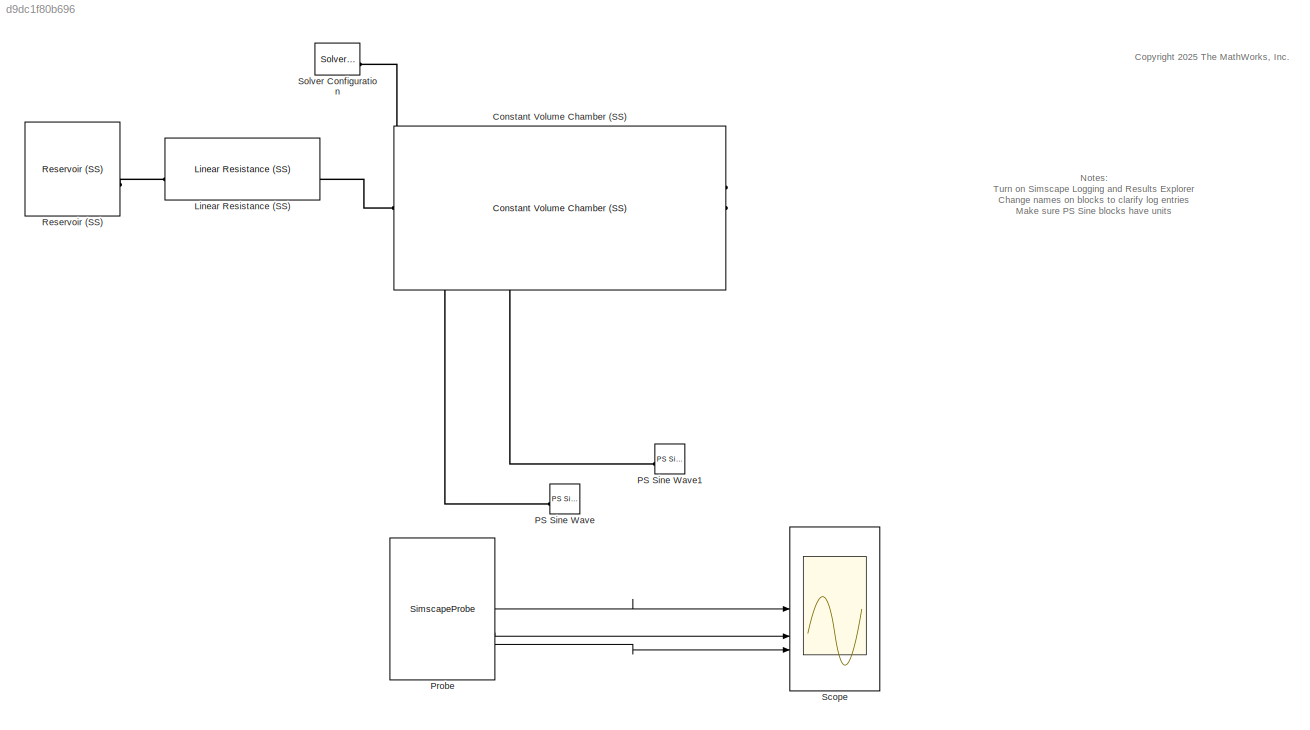
MODEL slx_d9dc1f80b696
KIND model
CONFIG AbsTol = auto
CONFIG EnableMultiTasking = off
CONFIG FixedStep = auto
CONFIG MaxStep = auto
CONFIG MinStep = auto
CONFIG RelTol = 1e-3
CONFIG SampleTimeConstraint = Unconstrained
CONFIG SolverName = VariableStepAuto
CONFIG StartTime = 0.0
CONFIG StopTime = 10.0
BLOCK [Reference] Constant Volume Chamber (SS)  REF=customization_lib/solution/elements/Constant Volume
Chamber (SS)
  SourceBlock = customization_lib/solution/elements/Constant Volume\nChamber (SS)
  SourceProductName = Customization
  SourceType = Constant Volume\nChamber (SS)
BLOCK [Reference] Linear Resistance (SS)  REF=customization_lib/solution/elements/Linear Resistance
(SS)
  SourceBlock = customization_lib/solution/elements/Linear Resistance\n(SS)
  SourceProductName = Customization
  SourceType = Linear Resistance\n(SS)
BLOCK [Reference] PS Sine Wave  REF=fl_lib/Physical Signals/Sources/PS Sine Wave
  SourceBlock = fl_lib/Physical Signals/Sources/PS Sine Wave
  SourceType = PS Sine Wave
BLOCK [Reference] PS Sine Wave1  REF=fl_lib/Physical Signals/Sources/PS Sine Wave
  SourceBlock = fl_lib/Physical Signals/Sources/PS Sine Wave
  SourceType = PS Sine Wave
BLOCK [SimscapeProbe] Probe
  BoundBlock = 12
  Variables = {"A.T":{"Probing":"OFF"},"A.p":{"Probing":"OFF"},"A.x":{"Probing":"OFF"},"P":{"Probing":"ON"},"T":{"Probing":"ON"},"X":{"Probing":"ON"}}
BLOCK [Reference] Reservoir (SS)  REF=customization_lib/solution/elements/Reservoir (SS)
  SourceBlock = customization_lib/solution/elements/Reservoir (SS)
  SourceProductName = Customization
  SourceType = Reservoir (SS)
BLOCK [Scope] Scope
  ActiveDisplayYMaximum = 0.17502263155606695
  ActiveDisplayYMinimum = 0.0610511419007594
  Floating = off
  GraphicalSettings = {"Style":{"BackgroundColor":[0.12941176470588237,0.12941176470588237,0.12941176470588237],"AxesColor":[0.07058823529411765,0.07058823529411765,0.07058823529411765],"LabelsColor":[0.8509803921568627,0.8509803921568627,0.8509803921568627],"PreserveColors":false,"Visible":[true,true,true],"LineStyle":["-","-","-"],"LineWidth":[1.5,1.5,1.5],"BarWidth":[0.9,0.9,0.9],"LineColor":["auto","auto","auto"],"...<+2656ch>
  LayoutDimensionsString = [3,1]
  MultipleDisplayCache = [{"MaxYLimMag":0.17502263155606695,"MaxYLimReal":0.17502263155606695,"MinYLimMag":0.0610511419007594,"MinYLimReal":0.0610511419007594,"PlotAsMagnitudePhase":false,"ShowGrid":true,"ShowLegend":false,"Title":"%<SignalLabel>","YLabel":""},{"MaxYLimMag":293.15034249026854,"MaxYLimReal":293.15034249026854,"MinYLimMag":293.14952049697922,"MinYLimReal":293.14952049697922,"PlotAsMagnitudePhase":false,"Sho...<+300ch>
  NumInputPorts = 3
  ScopeFrameLocation = window
  WasSavedAsWebScope = on
  WindowPosition = [1316.000000,126.000000,560.000000,420.000000,]
BLOCK [Reference] Solver Configuration  REF=nesl_utility/Solver
Configuration
  SourceBlock = nesl_utility/Solver\nConfiguration
  SourceType = Solver\nConfiguration
ANNOTATION (root): Notes: Turn on Simscape Logging and Results Explorer Change names on blocks to clarify log entries Make sure PS Sine blocks have units
ANNOTATION (root): <copyright redacted>
LINE Probe:1 -> Scope:1
LINE Probe:2 -> Scope:2
LINE Probe:3 -> Scope:3
PNET net1: Constant Volume Chamber (SS):LConn1 -- Linear Resistance (SS):RConn1 -- Solver Configuration:RConn1
PLINE Constant Volume Chamber (SS):RConn2 -- PS Sine Wave:RConn1
PLINE Constant Volume Chamber (SS):RConn3 -- PS Sine Wave1:RConn1
PLINE Linear Resistance (SS):LConn1 -- Reservoir (SS):LConn1
note: PNET lines group multi-terminal physical nets as a canonical sorted terminal list (undirected conserving connections); 2-terminal nets keep the pairwise PLINE form
